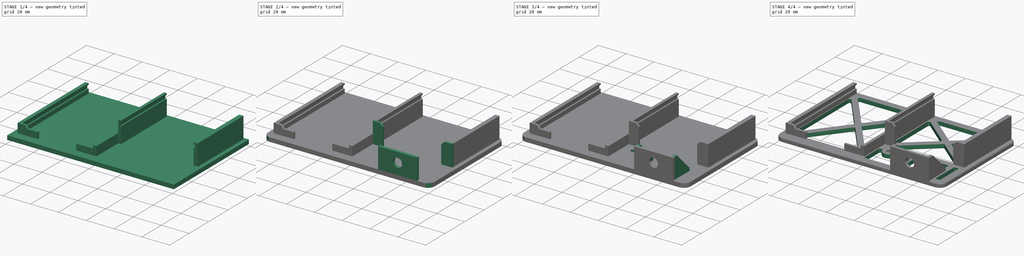
[diagram: build sequence overview — one tinted view per stage of 4, left to right]
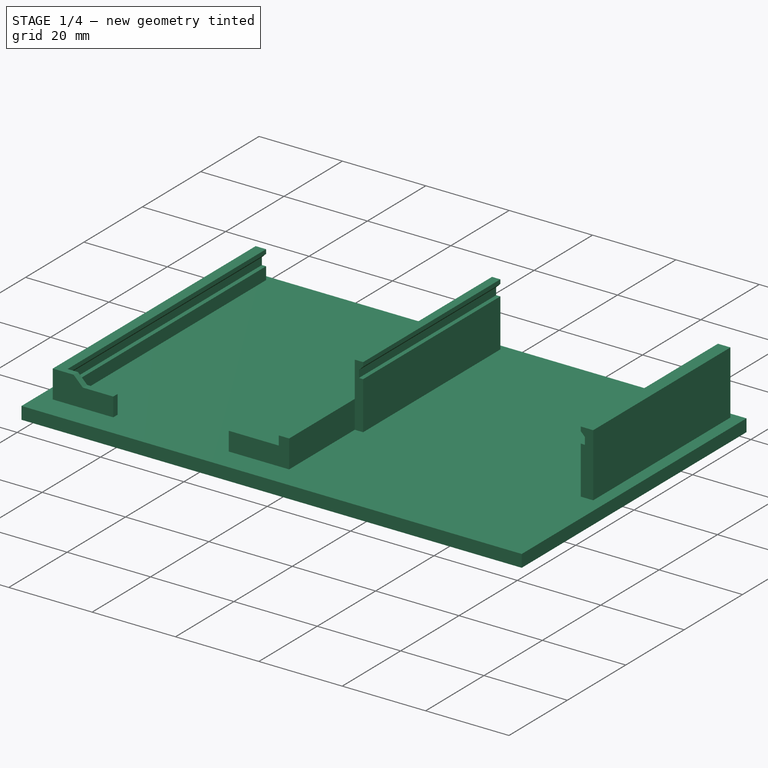
[diagram: stage 1 of 4 — iso view after this stage's code; geometry added in this stage tinted green]
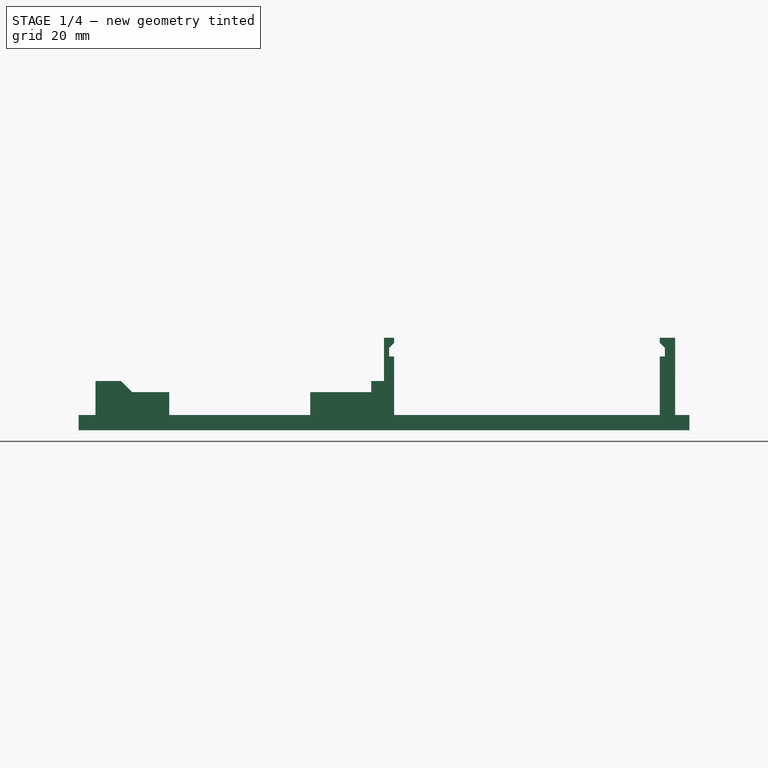
[diagram: stage 1 of 4 — front view after this stage's code; geometry added in this stage tinted green]
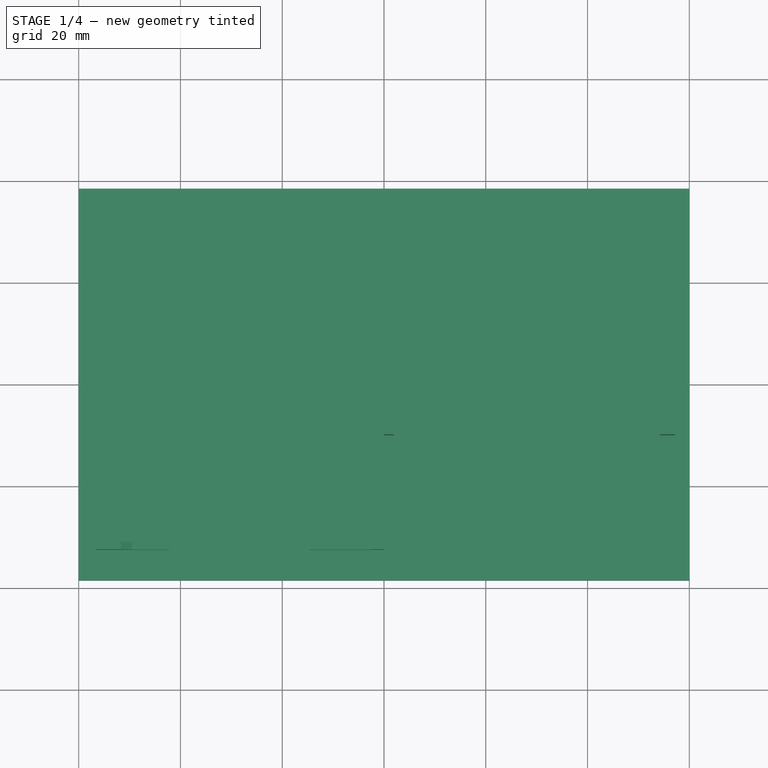
[diagram: stage 1 of 4 — top view after this stage's code; geometry added in this stage tinted green]
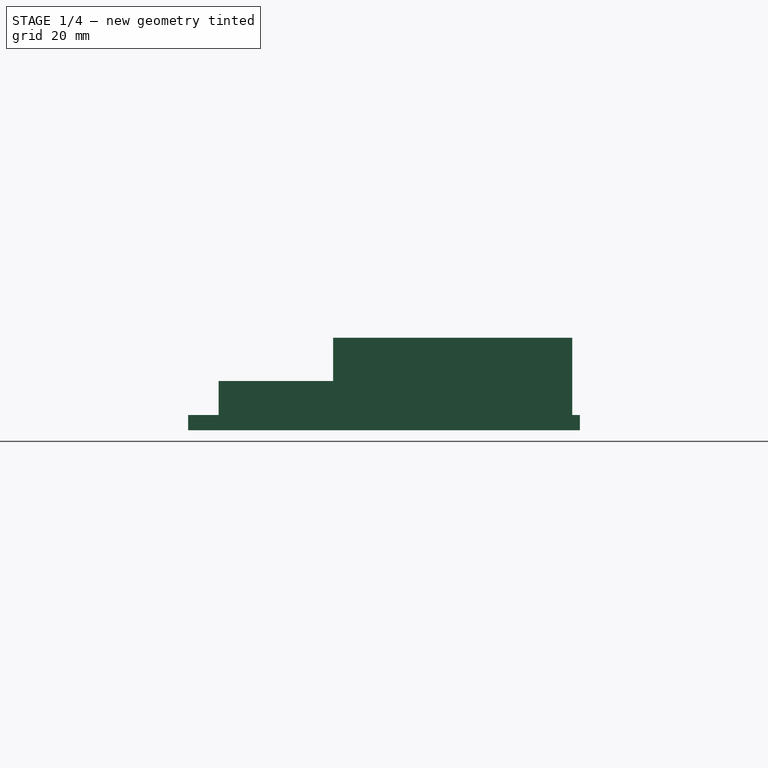
[diagram: stage 1 of 4 — right view after this stage's code; geometry added in this stage tinted green]
FCSTD DOCUMENT  (FreeCAD 0.18.4R)
Label: termostat_dev_frame
License: All rights reserved
LicenseURL: http://en.wikipedia.org/wiki/All_rights_reserved
objects: Sketcher::SketchObject×10, PartDesign::Pad×8, PartDesign::Fillet×4, PartDesign::Pocket×2, PartDesign::Body×1
note: 35 computed .brp shape members not serialized (recipe doc carries the construction recipe); baked Part::Feature solids carry a one-line shape summary decoded from their .brp

FEATURE [Sketcher::SketchObject] Sketch
  MapMode = 5
  Support = -> [XY_Plane]
  sketch-geometry (4):
    g0: LineSegment StartX=-60 StartY=38.5 StartZ=0 EndX=60 EndY=38.5 EndZ=0
    g1: LineSegment StartX=60 StartY=38.5 StartZ=0 EndX=60 EndY=-38.5 EndZ=0
    g2: LineSegment StartX=60 StartY=-38.5 StartZ=0 EndX=-60 EndY=-38.5 EndZ=0
    g3: LineSegment StartX=-60 StartY=-38.5 StartZ=0 EndX=-60 EndY=38.5 EndZ=0
  constraints (9):
    c: Coincident(g0,g1)
    c: Coincident(g1,g2)
    c: Coincident(g2,g3)
    c: Coincident(g3,g0)
    c: Symmetric(g0,g0,g-2)
    c: Symmetric(g0,g2,g-1)
    c: Symmetric(g2,g1,g-2)
    c: DistanceY(g1,g1) = 77
    c: DistanceX(g0,g0) = 120
FEATURE [PartDesign::Pad] Pad
  Length = 3
  Length2 = 100
  Profile = -> Sketch
  Type = 0
FEATURE [Sketcher::SketchObject] Sketch001
  ExternalGeometry = -> [Pad]
  MapMode = 5
  Placement = pos=(0,0,0) rot=(1,0,0;1.5708rad)
  Support = -> [XZ_Plane]
  sketch-geometry (17):
    g0: LineSegment StartX=-56.7 StartY=3 StartZ=0 EndX=-56.7 EndY=9.7 EndZ=0
    g1: LineSegment StartX=-56.7 StartY=9.7 StartZ=0 EndX=-54.2 EndY=9.7 EndZ=0
    g2: LineSegment StartX=-54.2 StartY=9.7 StartZ=0 EndX=-54.2 EndY=8.7 EndZ=0
    g3: LineSegment StartX=-54.2 StartY=8.7 StartZ=0 EndX=-55.2 EndY=7.7 EndZ=0
    g4: LineSegment StartX=-55.2 StartY=7.7 StartZ=0 EndX=-55.2 EndY=6 EndZ=0
    g5: LineSegment StartX=-55.2 StartY=6 StartZ=0 EndX=-54.2 EndY=6 EndZ=0
    g6: LineSegment StartX=-54.2 StartY=6 StartZ=0 EndX=-54.2 EndY=3 EndZ=0
    g7: LineSegment StartX=-54.2 StartY=3 StartZ=0 EndX=-56.7 EndY=3 EndZ=0
    g8: LineSegment StartX=-2 StartY=3 StartZ=0 EndX=-2 EndY=6 EndZ=0
    g9: LineSegment StartX=-2 StartY=6 StartZ=0 EndX=-1 EndY=6 EndZ=0
    g10: LineSegment StartX=-1 StartY=6 StartZ=0 EndX=-1 EndY=7.7 EndZ=0
    g11: LineSegment StartX=-1 StartY=7.7 StartZ=0 EndX=-2 EndY=8.7 EndZ=0
    g12: LineSegment StartX=-2 StartY=8.7 StartZ=0 EndX=-2 EndY=9.7 EndZ=0
    g13: LineSegment StartX=-2 StartY=9.7 StartZ=0 EndX=0 EndY=9.7 EndZ=0
    g14: LineSegment StartX=0 StartY=9.7 StartZ=0 EndX=0 EndY=3 EndZ=0
    g15: LineSegment StartX=0 StartY=3 StartZ=0 EndX=-2 EndY=3 EndZ=0
    g16: LineSegment [constr] StartX=-28.1 StartY=9.7 StartZ=0 EndX=-28.1 EndY=3 EndZ=0
  constraints (46):
    c: Coincident(g0,g1)
    c: Horizontal(g1)
    c: Coincident(g1,g2)
    c: Coincident(g2,g3)
    c: Coincident(g3,g4)
    c: Vertical(g4)
    c: Coincident(g4,g5)
    c: Coincident(g5,g6)
    c: Vertical(g6)
    c: Coincident(g6,g7)
    c: Coincident(g7,g0)
    c: Parallel(g7,g-3)
    c: Coincident(g8,g9)
    c: Coincident(g9,g10)
    c: Coincident(g10,g11)
    c: Coincident(g11,g12)
    c: Coincident(g12,g13)
    c: Coincident(g13,g14)
    c: Coincident(g14,g15)
    c: Coincident(g15,g8)
    c: PointOnObject(g16,g-3)
    c: Vertical(g16)
    c: PointOnObject(g16,g1)
    c: Symmetric(g12,g1,g16)
    c: Symmetric(g11,g2,g16)
    c: Vertical(g2)
    c: Symmetric(g3,g10,g16)
    c: Symmetric(g4,g9,g16)
    c: Symmetric(g5,g8,g16)
    c: Symmetric(g6,g8,g16)
    c: DistanceY(g6,g6) = 3
    c: Horizontal(g5)
    c: DistanceX(g5,g5) = 1
    c: DistanceY(g4,g4) = 1.7
    c: Angle(g4,g3) = 2.35619
    c: PointOnObject(g5,g2)
    c: DistanceY(g2,g2) = 1
    c: DistanceX(g4,g9) = 54.2
    c: DistanceX(g13,g13) = 2
    c: Vertical(g14)
    c: Horizontal(g15)
    c: DistanceX(g1,g1) = 2.5
    c: Perpendicular(g7,g0)
    c: PointOnObject(g0,g-3)
    c: PointOnObject(g14,g-2)
    c: Perpendicular(g14,g13)
FEATURE [PartDesign::Pad] Pad001
  BaseFeature = -> Pad
  Length = 31
  Length2 = 37
  Profile = -> Sketch001
  Type = 4
FEATURE [Sketcher::SketchObject] Sketch002
  ExternalGeometry = -> [Pad001]
  MapMode = 5
  Placement = pos=(0,-31,-6.8e-15) rot=(1,0,0;1.5708rad)
  Support = -> [Pad001]
  sketch-geometry (12):
    g0: LineSegment StartX=-56.7 StartY=3 StartZ=0 EndX=-56.7 EndY=9.7 EndZ=0
    g1: LineSegment StartX=-56.7 StartY=9.7 StartZ=0 EndX=-51.7 EndY=9.7 EndZ=0
    g2: LineSegment StartX=-51.7 StartY=9.7 StartZ=0 EndX=-49.5 EndY=7.5 EndZ=0
    g3: LineSegment StartX=-49.5 StartY=7.5 StartZ=0 EndX=-42.2 EndY=7.5 EndZ=0
    g4: LineSegment StartX=-42.2 StartY=7.5 StartZ=0 EndX=-42.2 EndY=3 EndZ=0
    g5: LineSegment StartX=-42.2 StartY=3 StartZ=0 EndX=-56.7 EndY=3 EndZ=0
    g6: LineSegment StartX=-2.84e-14 StartY=3 StartZ=0 EndX=-2.84e-14 EndY=9.7 EndZ=0
    g7: LineSegment StartX=-2.84e-14 StartY=9.7 StartZ=0 EndX=-2.5 EndY=9.7 EndZ=0
    g8: LineSegment StartX=-2.5 StartY=9.7 StartZ=0 EndX=-2.5 EndY=7.5 EndZ=0
    g9: LineSegment StartX=-2.5 StartY=7.5 StartZ=0 EndX=-14.5 EndY=7.5 EndZ=0
    g10: LineSegment StartX=-14.5 StartY=7.5 StartZ=0 EndX=-14.5 EndY=3 EndZ=0
    g11: LineSegment StartX=-14.5 StartY=3 StartZ=0 EndX=-2.84e-14 EndY=3 EndZ=0
  constraints (36):
    c: Vertical(g0)
    c: Coincident(g0,g1)
    c: Horizontal(g1)
    c: Coincident(g1,g2)
    c: Coincident(g2,g3)
    c: Horizontal(g3)
    c: Coincident(g3,g4)
    c: Vertical(g4)
    c: Coincident(g4,g5)
    c: Coincident(g5,g0)
    c: Horizontal(g5)
    c: Vertical(g6)
    c: Coincident(g6,g7)
    c: Horizontal(g7)
    c: Coincident(g7,g8)
    c: Coincident(g8,g9)
    c: Coincident(g9,g10)
    c: Coincident(g10,g11)
    c: Coincident(g11,g6)
    c: Horizontal(g11)
    c: DistanceY(g0,g0) = 6.7
    c: Angle(g1,g2) = 2.35619
    c: Perpendicular(g7,g8)
    c: Horizontal(g9)
    c: Perpendicular(g9,g10)
    c: PointOnObject(g-3,g5)
    c: DistanceX(g0,g-3) = 2.5
    c: DistanceX(g5,g5) = 14.5
    c: DistanceX(g1,g1) = 5
    c: DistanceY(g-3,g3) = 1.5
    c: PointOnObject(g4,g11)
    c: PointOnObject(g3,g9)
    c: DistanceX(g-4,g6) = 2
    c: PointOnObject(g1,g7)
    c: DistanceX(g7,g7) = 2.5
    c: DistanceX(g11,g11) = 14.5
FEATURE [PartDesign::Pad] Pad002
  BaseFeature = -> Pad001
  Length = 1.5
  Length2 = 100
  Profile = -> Sketch002
  Type = 0
FEATURE [Sketcher::SketchObject] Sketch003
  ExternalGeometry = -> [Pad002]
  MapMode = 5
  Placement = pos=(0,0,0) rot=(1,0,0;1.5708rad)
  Support = -> [XZ_Plane]
  sketch-geometry (17):
    g0: LineSegment [constr] StartX=28.1 StartY=18.2 StartZ=0 EndX=28.1 EndY=3 EndZ=0
    g1: LineSegment StartX=0 StartY=3 StartZ=0 EndX=0 EndY=18.2 EndZ=0
    g2: LineSegment StartX=0 StartY=18.2 StartZ=0 EndX=2 EndY=18.2 EndZ=0
    g3: LineSegment StartX=2 StartY=18.2 StartZ=0 EndX=2 EndY=17.2 EndZ=0
    g4: LineSegment StartX=2 StartY=17.2 StartZ=0 EndX=1 EndY=16.2 EndZ=0
    g5: LineSegment StartX=1 StartY=16.2 StartZ=0 EndX=1 EndY=14.5 EndZ=0
    g6: LineSegment StartX=1 StartY=14.5 StartZ=0 EndX=2 EndY=14.5 EndZ=0
    g7: LineSegment StartX=2 StartY=14.5 StartZ=0 EndX=2 EndY=3 EndZ=0
    g8: LineSegment StartX=2 StartY=3 StartZ=0 EndX=0 EndY=3 EndZ=0
    g9: LineSegment StartX=54.2 StartY=18.2 StartZ=0 EndX=57.2 EndY=18.2 EndZ=0
    g10: LineSegment StartX=57.2 StartY=18.2 StartZ=0 EndX=57.2 EndY=3 EndZ=0
    g11: LineSegment StartX=57.2 StartY=3 StartZ=0 EndX=54.2 EndY=3 EndZ=0
    g12: LineSegment StartX=54.2 StartY=3 StartZ=0 EndX=54.2 EndY=14.5 EndZ=0
    g13: LineSegment StartX=54.2 StartY=14.5 StartZ=0 EndX=55.2 EndY=14.5 EndZ=0
    g14: LineSegment StartX=55.2 StartY=14.5 StartZ=0 EndX=55.2 EndY=16.2 EndZ=0
    g15: LineSegment StartX=55.2 StartY=16.2 StartZ=0 EndX=54.2 EndY=17.2 EndZ=0
    g16: LineSegment StartX=54.2 StartY=17.2 StartZ=0 EndX=54.2 EndY=18.2 EndZ=0
  constraints (46):
    c: Vertical(g0)
    c: PointOnObject(g0,g-3)
    c: Vertical(g1)
    c: Coincident(g1,g2)
    c: Horizontal(g2)
    c: Coincident(g2,g3)
    c: Vertical(g3)
    c: Coincident(g3,g4)
    c: Coincident(g4,g5)
    c: Coincident(g5,g6)
    c: Coincident(g6,g7)
    c: Coincident(g7,g8)
    c: Coincident(g8,g1)
    c: Horizontal(g8)
    c: Coincident(g9,g10)
    c: Vertical(g10)
    c: Coincident(g10,g11)
    c: Horizontal(g11)
    c: Coincident(g11,g12)
    c: Coincident(g12,g13)
    c: Coincident(g13,g14)
    c: Coincident(g14,g15)
    c: Coincident(g15,g16)
    c: Coincident(g16,g9)
    c: Vertical(g7)
    c: Horizontal(g6)
    c: Vertical(g5)
    c: Angle(g3,g4) = 2.35619
    c: Symmetric(g5,g13,g0)
    c: Symmetric(g12,g6,g0)
    c: DistanceX(g5,g13) = 54.2
    c: DistanceX(g6,g6) = 1
    c: PointOnObject(g1,g-3)
    c: PointOnObject(g1,g-2)
    c: PointOnObject(g7,g3)
    c: DistanceX(g2,g2) = 2
    c: DistanceY(g3,g3) = 1
    c: DistanceY(g5,g5) = 1.7
    c: DistanceY(g7,g7) = 11.5
    c: PointOnObject(g0,g2)
    c: Symmetric(g14,g4,g0)
    c: Symmetric(g3,g15,g0)
    c: Symmetric(g9,g2,g0)
    c: Symmetric(g11,g7,g0)
    c: Perpendicular(g10,g9)
    c: DistanceX(g9,g9) = 3
FEATURE [PartDesign::Pad] Pad003
  BaseFeature = -> Pad002
  Length = 10
  Length2 = 37
  Profile = -> Sketch003
  Type = 4
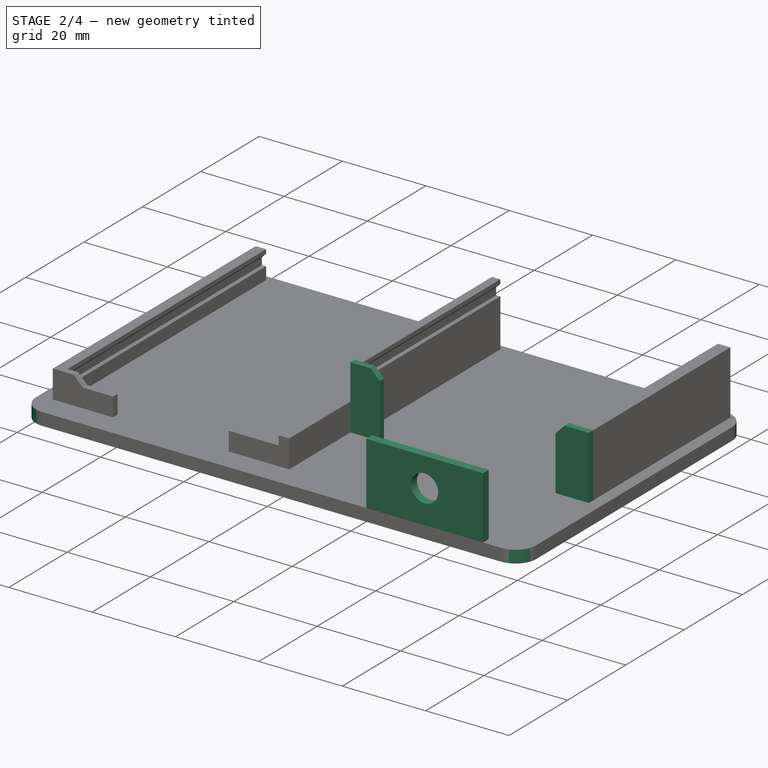
[diagram: stage 2 of 4 — iso view after this stage's code; geometry added in this stage tinted green]
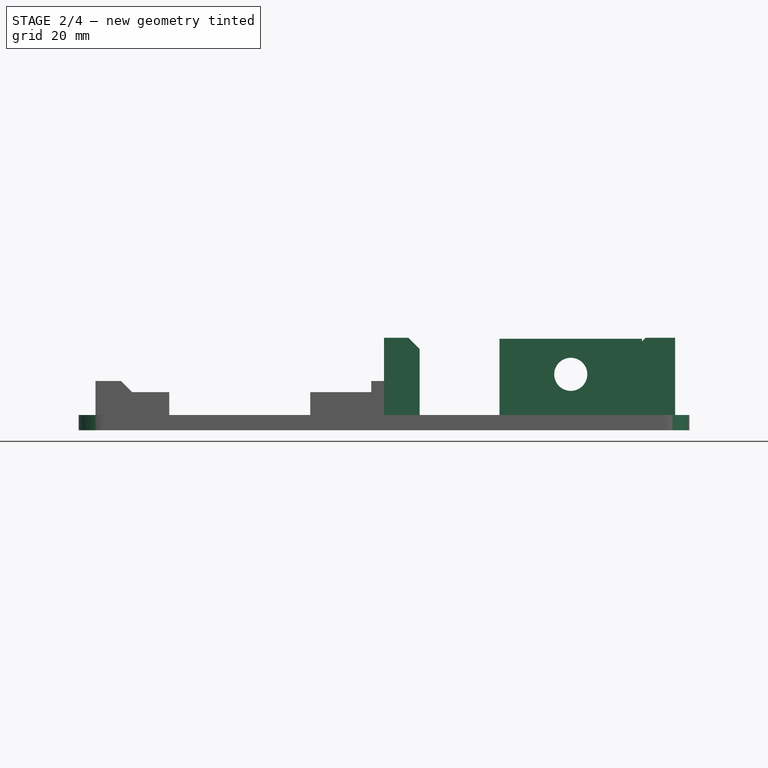
[diagram: stage 2 of 4 — front view after this stage's code; geometry added in this stage tinted green]
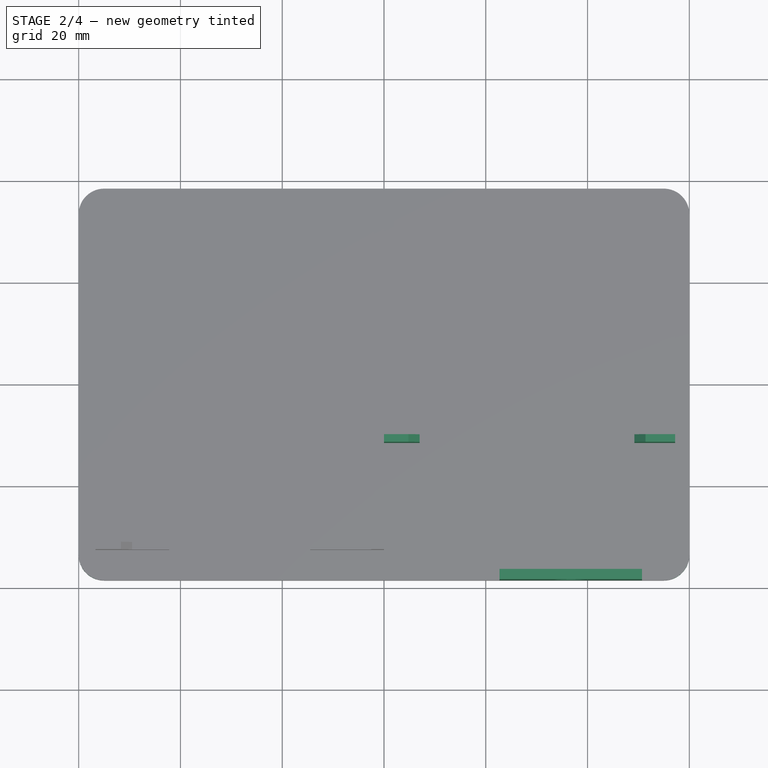
[diagram: stage 2 of 4 — top view after this stage's code; geometry added in this stage tinted green]
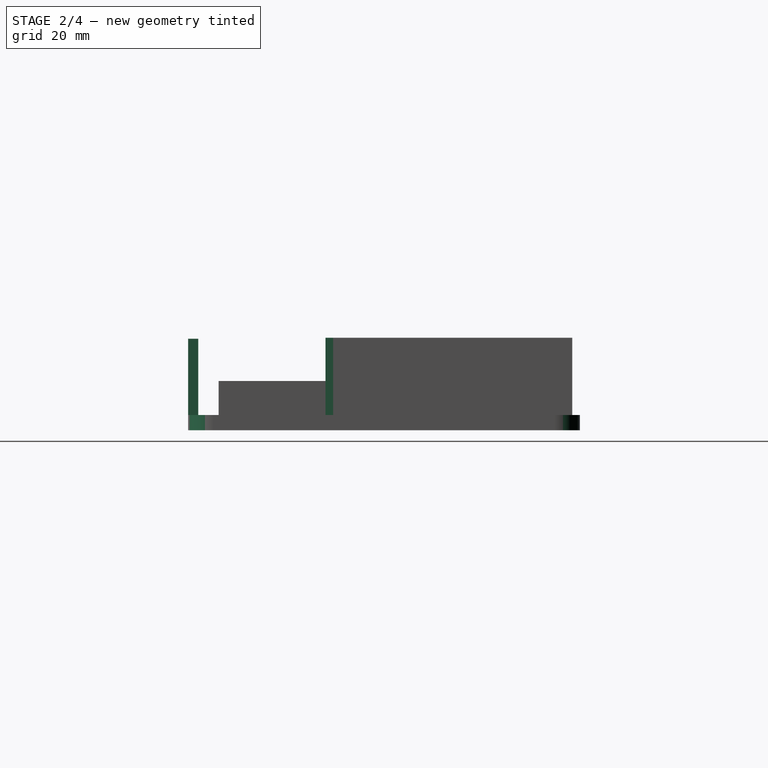
[diagram: stage 2 of 4 — right view after this stage's code; geometry added in this stage tinted green]
FEATURE [Sketcher::SketchObject] Sketch004
  ExternalGeometry = -> [Pad003]
  MapMode = 5
  Placement = pos=(0,-10,-2.2e-15) rot=(1,0,0;1.5708rad)
  Support = -> [Pad003]
  sketch-geometry (11):
    g0: LineSegment StartX=-6e-16 StartY=3 StartZ=0 EndX=-6e-16 EndY=18.2 EndZ=0
    g1: LineSegment StartX=-6e-16 StartY=18.2 StartZ=0 EndX=4.8 EndY=18.2 EndZ=0
    g2: LineSegment StartX=4.8 StartY=18.2 StartZ=0 EndX=7 EndY=16 EndZ=0
    g3: LineSegment StartX=7 StartY=16 StartZ=0 EndX=7 EndY=3 EndZ=0
    g4: LineSegment StartX=-6e-16 StartY=3 StartZ=0 EndX=7 EndY=3 EndZ=0
    g5: LineSegment StartX=51.4 StartY=18.2 StartZ=0 EndX=57.2 EndY=18.2 EndZ=0
    g6: LineSegment StartX=57.2 StartY=18.2 StartZ=0 EndX=57.2 EndY=3 EndZ=0
    g7: LineSegment StartX=57.2 StartY=3 StartZ=0 EndX=49.2 EndY=3 EndZ=0
    g8: LineSegment StartX=49.2 StartY=3 StartZ=0 EndX=49.2 EndY=16 EndZ=0
    g9: LineSegment StartX=49.2 StartY=16 StartZ=0 EndX=51.4 EndY=18.2 EndZ=0
    g10: LineSegment [constr] StartX=28.1 StartY=18.2 StartZ=0 EndX=28.1 EndY=3 EndZ=0
  constraints (30):
    c: Vertical(g0)
    c: Coincident(g0,g1)
    c: Horizontal(g1)
    c: Coincident(g1,g2)
    c: Coincident(g2,g3)
    c: Vertical(g3)
    c: Angle(g1,g2) = 2.35619
    c: DistanceX(g0,g-3) = 2
    c: Coincident(g4,g0)
    c: Coincident(g4,g3)
    c: Perpendicular(g3,g4)
    c: PointOnObject(g-3,g4)
    c: DistanceY(g0,g0) = 15.2
    c: DistanceX(g4,g4) = 7
    c: DistanceY(g-3,g2) = 1.5
    c: Coincident(g5,g6)
    c: Coincident(g6,g7)
    c: Coincident(g7,g8)
    c: Coincident(g8,g9)
    c: Coincident(g9,g5)
    c: Symmetric(g-4,g-3,g10)
    c: PointOnObject(g10,g4)
    c: PointOnObject(g10,g1)
    c: Symmetric(g3,g7,g10)
    c: Symmetric(g8,g2,g10)
    c: Symmetric(g5,g1,g10)
    c: Perpendicular(g8,g7)
    c: Perpendicular(g7,g6)
    c: Perpendicular(g6,g5)
    c: DistanceX(g-4,g5) = 3
FEATURE [PartDesign::Pad] Pad004
  BaseFeature = -> Pad003
  Length = 1.5
  Length2 = 100
  Profile = -> Sketch004
  Type = 0
FEATURE [Sketcher::SketchObject] Sketch005
  ExternalGeometry = -> [Pad004]
  MapMode = 5
  Placement = pos=(0,-38.5,0) rot=(1,0,0;1.5708rad)
  Support = -> [Pad004]
  sketch-geometry (6):
    g0: LineSegment StartX=22.7 StartY=18 StartZ=0 EndX=50.7 EndY=18 EndZ=0
    g1: LineSegment StartX=50.7 StartY=18 StartZ=0 EndX=50.7 EndY=3 EndZ=0
    g2: LineSegment StartX=50.7 StartY=3 StartZ=0 EndX=22.7 EndY=3 EndZ=0
    g3: LineSegment StartX=22.7 StartY=3 StartZ=0 EndX=22.7 EndY=18 EndZ=0
    g4: Circle CenterX=36.7 CenterY=11 CenterZ=0 NormalX=0 NormalY=0 NormalZ=1 AngleXU=0 Radius=3.25
    g5: LineSegment [constr] StartX=36.7 StartY=11 StartZ=0 EndX=36.7 EndY=18 EndZ=0
  constraints (17):
    c: Coincident(g0,g1)
    c: Coincident(g1,g2)
    c: Coincident(g2,g3)
    c: Coincident(g3,g0)
    c: Horizontal(g0)
    c: Horizontal(g2)
    c: Vertical(g1)
    c: Vertical(g3)
    c: Coincident(g5,g4)
    c: PointOnObject(g5,g0)
    c: Symmetric(g0,g0,g5)
    c: DistanceX(g0,g0) = 28
    c: DistanceY(g1,g4) = 8
    c: DistanceY(g5,g5) = 7
    c: Diameter(g4) = 6.5
    c: PointOnObject(g-3,g2)
    c: DistanceX(g-3,g0) = 1.5
FEATURE [PartDesign::Pad] Pad005
  BaseFeature = -> Pad004
  Length = 2
  Length2 = 100
  Profile = -> Sketch005
  Reversed = true
  Type = 0
FEATURE [PartDesign::Fillet] Fillet
  Base = -> Pad005 [Edge5,Edge8,Edge2,Edge1]
  BaseFeature = -> Pad005
  Radius = 5
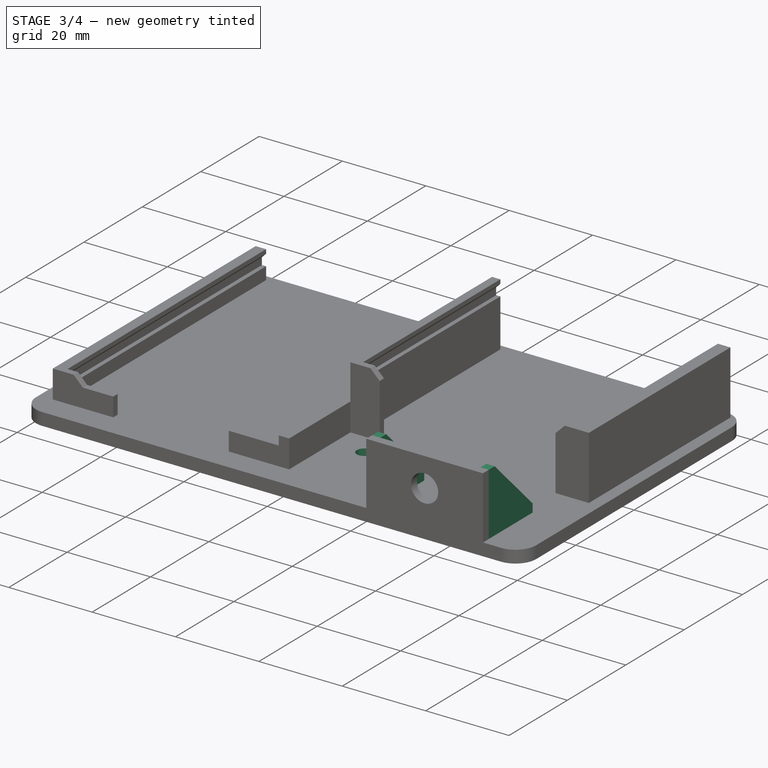
[diagram: stage 3 of 4 — iso view after this stage's code; geometry added in this stage tinted green]
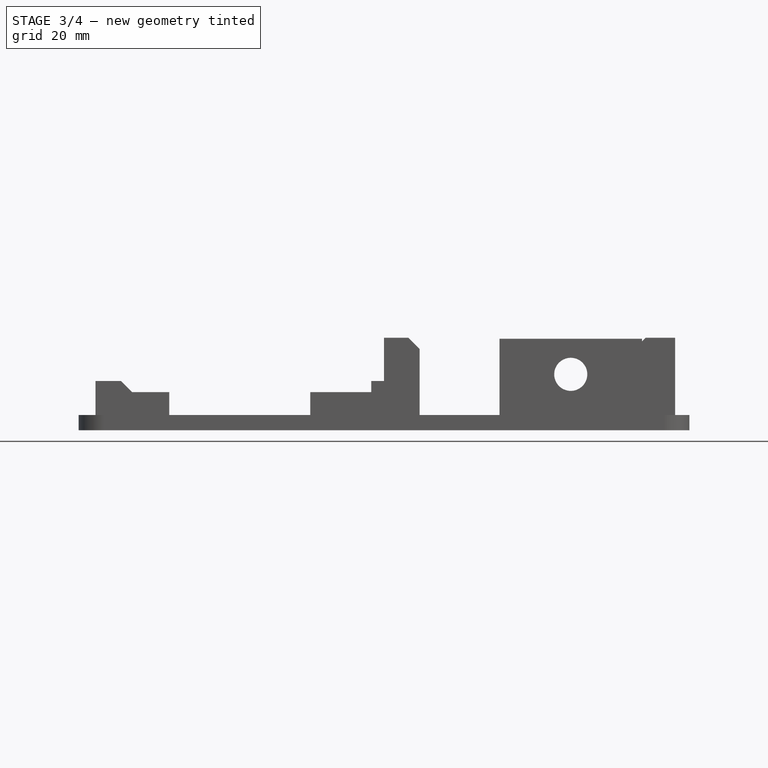
[diagram: stage 3 of 4 — front view after this stage's code; geometry added in this stage tinted green]
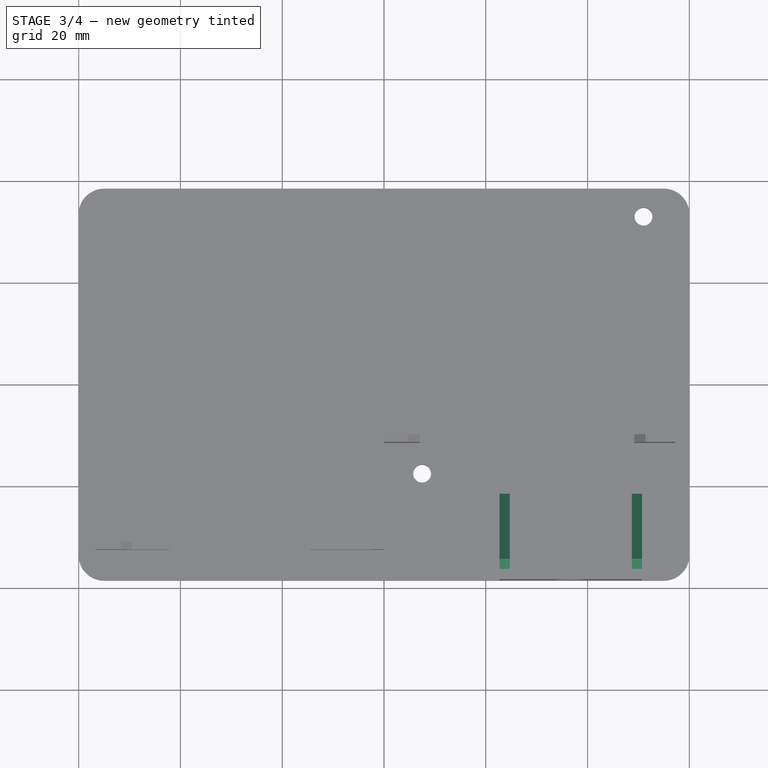
[diagram: stage 3 of 4 — top view after this stage's code; geometry added in this stage tinted green]
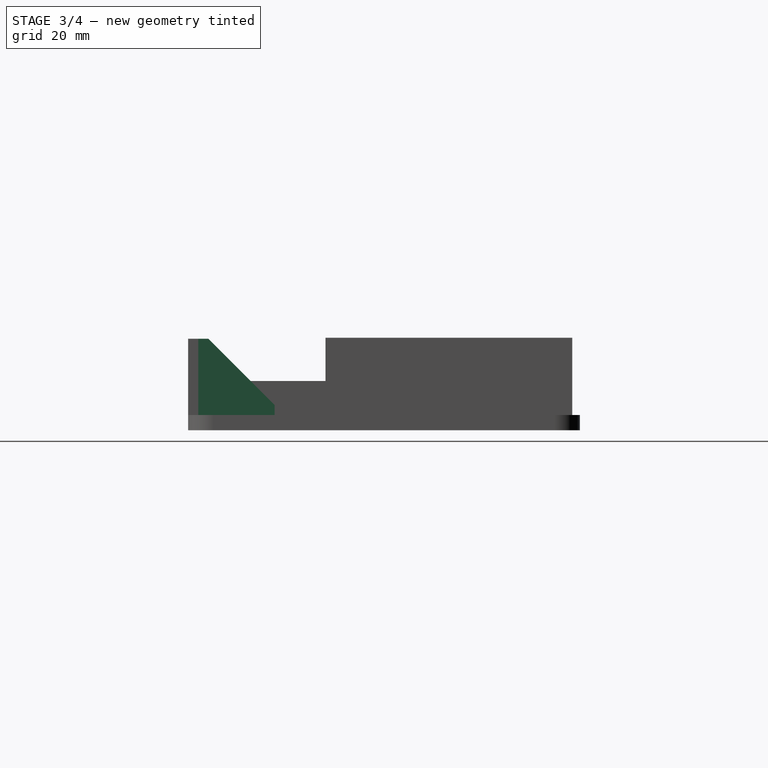
[diagram: stage 3 of 4 — right view after this stage's code; geometry added in this stage tinted green]
FEATURE [Sketcher::SketchObject] Sketch006
  sketch-geometry (2):
    g0: Circle CenterX=51 CenterY=33 CenterZ=0 NormalX=0 NormalY=0 NormalZ=1 AngleXU=0 Radius=1.75
    g1: Circle CenterX=7.5 CenterY=-17.5 CenterZ=0 NormalX=0 NormalY=0 NormalZ=1 AngleXU=0 Radius=1.75
  constraints (6):
    c: Equal(g0,g1)
    c: Diameter(g0) = 3.5
    c: DistanceX(g1,g0) = 43.5
    c: DistanceY(g1,g0) = 50.5
    c: DistanceY(g-1,g0) = 33
    c: DistanceX(g-1,g0) = 51
FEATURE [PartDesign::Pocket] Pocket
  BaseFeature = -> Fillet
  Length = 5
  Length2 = 100
  Profile = -> Sketch006
  Reversed = true
  Type = 1
FEATURE [Sketcher::SketchObject] Sketch007
  ExternalGeometry = -> [Pocket]
  MapMode = 5
  Placement = pos=(22.7,0,0) rot=(0.57735,-0.57735,-0.57735;2.0944rad)
  Support = -> [Pocket]
  sketch-geometry (5):
    g0: LineSegment StartX=36.5 StartY=18 StartZ=0 EndX=34.5 EndY=18 EndZ=0
    g1: LineSegment StartX=34.5 StartY=18 StartZ=0 EndX=21.5 EndY=5 EndZ=0
    g2: LineSegment StartX=21.5 StartY=5 StartZ=0 EndX=21.5 EndY=3 EndZ=0
    g3: LineSegment StartX=21.5 StartY=3 StartZ=0 EndX=36.5 EndY=3 EndZ=0
    g4: LineSegment StartX=36.5 StartY=3 StartZ=0 EndX=36.5 EndY=18 EndZ=0
  constraints (13):
    c: Coincident(g-3,g0)
    c: Horizontal(g0)
    c: Coincident(g0,g1)
    c: Coincident(g1,g2)
    c: Vertical(g2)
    c: Coincident(g2,g3)
    c: Coincident(g3,g-3)
    c: Coincident(g3,g4)
    c: Coincident(g4,g0)
    c: Perpendicular(g4,g3)
    c: Equal(g0,g2)
    c: Angle(g1,g0) = 2.35619
    c: DistanceX(g0,g0) = 2
FEATURE [PartDesign::Pad] Pad006
  BaseFeature = -> Pocket
  Length = 2
  Length2 = 100
  Profile = -> Sketch007
  Reversed = true
  Type = 0
FEATURE [Sketcher::SketchObject] Sketch008
  ExternalGeometry = -> [Pocket]
  MapMode = 5
  Placement = pos=(50.7,0,0) rot=(0.57735,0.57735,0.57735;2.0944rad)
  Support = -> [Pad006]
  sketch-geometry (5):
    g0: LineSegment StartX=-36.5 StartY=18 StartZ=0 EndX=-34.5 EndY=18 EndZ=0
    g1: LineSegment StartX=-34.5 StartY=18 StartZ=0 EndX=-21.5 EndY=5 EndZ=0
    g2: LineSegment StartX=-21.5 StartY=5 StartZ=0 EndX=-21.5 EndY=3 EndZ=0
    g3: LineSegment StartX=-21.5 StartY=3 StartZ=0 EndX=-36.5 EndY=3 EndZ=0
    g4: LineSegment StartX=-36.5 StartY=3 StartZ=0 EndX=-36.5 EndY=18 EndZ=0
  constraints (13):
    c: Coincident(g-3,g0)
    c: Horizontal(g0)
    c: Coincident(g0,g1)
    c: Coincident(g1,g2)
    c: Vertical(g2)
    c: Coincident(g2,g3)
    c: Coincident(g3,g-3)
    c: Coincident(g3,g4)
    c: Coincident(g4,g0)
    c: Perpendicular(g4,g3)
    c: Equal(g0,g2)
    c: DistanceX(g0,g0) = 2
    c: Angle(g0,g1) = 2.35619
FEATURE [PartDesign::Pad] Pad007
  BaseFeature = -> Pad006
  Length = 2
  Length2 = 100
  Profile = -> Sketch008
  Reversed = true
  Type = 0
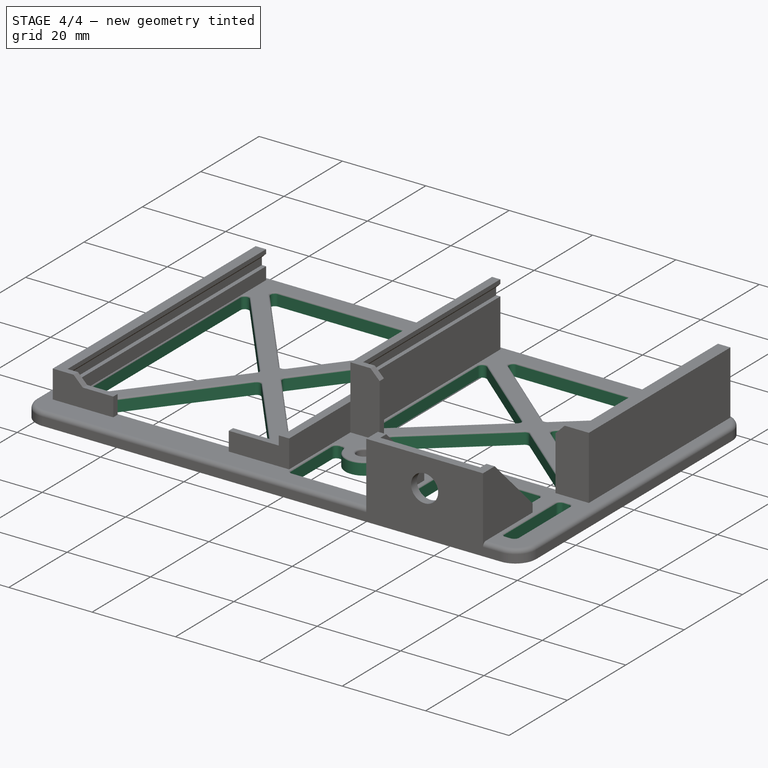
[diagram: stage 4 of 4 — iso view after this stage's code; geometry added in this stage tinted green]
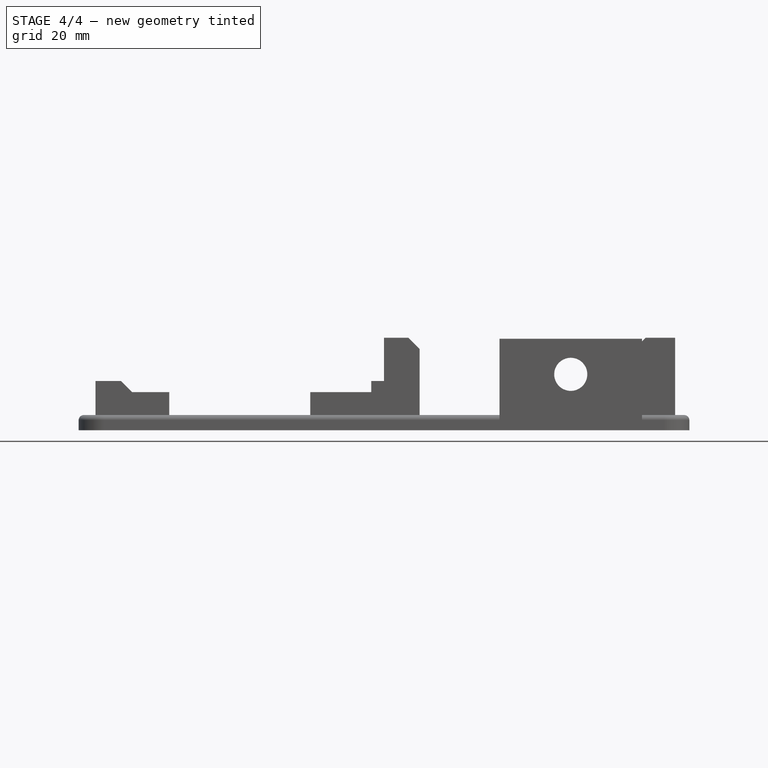
[diagram: stage 4 of 4 — front view after this stage's code; geometry added in this stage tinted green]
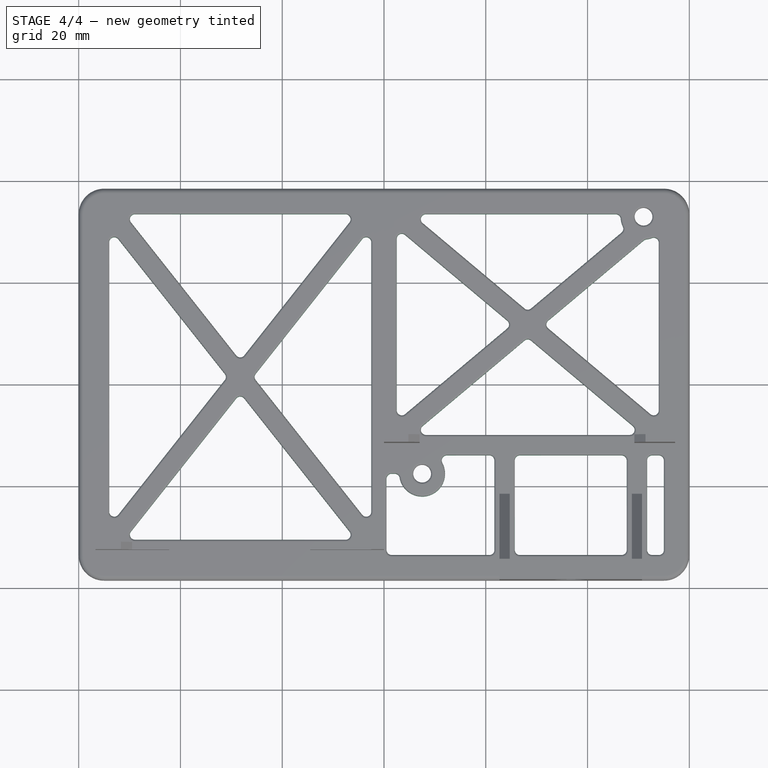
[diagram: stage 4 of 4 — top view after this stage's code; geometry added in this stage tinted green]
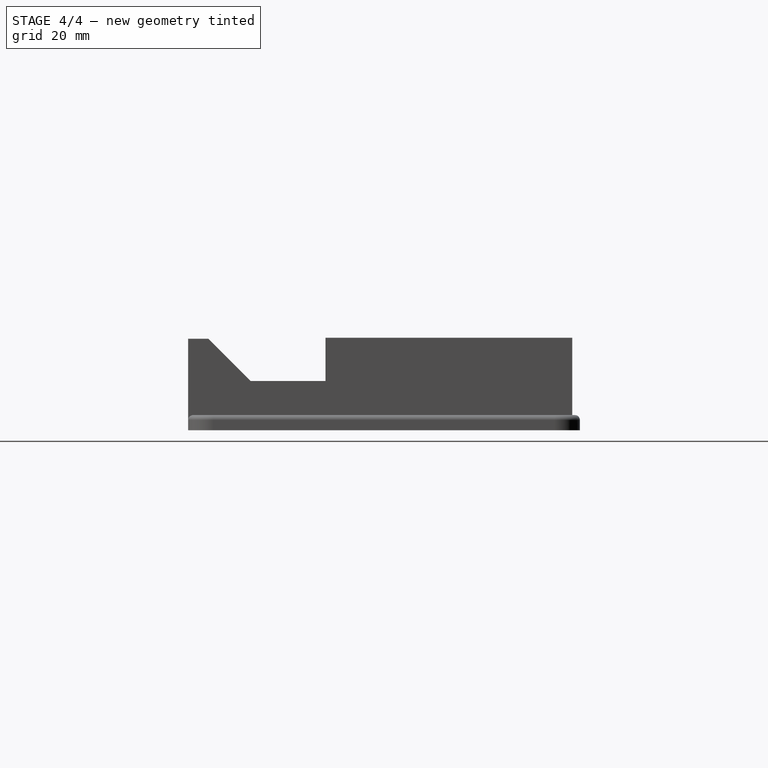
[diagram: stage 4 of 4 — right view after this stage's code; geometry added in this stage tinted green]
FEATURE [Sketcher::SketchObject] Sketch009
  ExternalGeometry = -> [Pad007]
  MapMode = 5
  Placement = pos=(0,0,3) rot=(0,0,1;0rad)
  Support = -> [Pad007]
  sketch-geometry (40):
    g0: LineSegment StartX=-54 StartY=30.8449 StartZ=0 EndX=-30.7996 EndY=1.5 EndZ=0
    g1: LineSegment StartX=-30.7996 StartY=1.5 StartZ=0 EndX=-54 EndY=-27.8449 EndZ=0
    g2: LineSegment StartX=-54 StartY=-27.8449 StartZ=0 EndX=-54 EndY=30.8449 EndZ=0
    g3: LineSegment StartX=-51 StartY=33.5 StartZ=0 EndX=-28.25 EndY=4.7248 EndZ=0
    g4: LineSegment StartX=-28.25 StartY=4.7248 StartZ=0 EndX=-5.5 EndY=33.5 EndZ=0
    g5: LineSegment StartX=-5.5 StartY=33.5 StartZ=0 EndX=-51 EndY=33.5 EndZ=0
    g6: LineSegment StartX=-2.5 StartY=30.8449 StartZ=0 EndX=-25.7004 EndY=1.5 EndZ=0
    g7: LineSegment StartX=-25.7004 StartY=1.5 StartZ=0 EndX=-2.5 EndY=-27.8449 EndZ=0
    g8: LineSegment StartX=-2.5 StartY=-27.8449 StartZ=0 EndX=-2.5 EndY=30.8449 EndZ=0
    g9: LineSegment StartX=-28.25 StartY=-1.7248 StartZ=0 EndX=-51 EndY=-30.5 EndZ=0
    g10: LineSegment StartX=-51 StartY=-30.5 StartZ=0 EndX=-5.5 EndY=-30.5 EndZ=0
    g11: LineSegment StartX=-5.5 StartY=-30.5 StartZ=0 EndX=-28.25 EndY=-1.7248 EndZ=0
    g12: LineSegment StartX=2.5 StartY=30.7957 StartZ=0 EndX=2.5 EndY=-7.19566 EndZ=0
    g13: LineSegment StartX=2.5 StartY=-7.19566 StartZ=0 EndX=25.1385 EndY=11.8 EndZ=0
    g14: LineSegment StartX=25.1385 StartY=11.8 StartZ=0 EndX=2.5 EndY=30.7957 EndZ=0
    g15: LineSegment StartX=5.5 StartY=-9.9 StartZ=0 EndX=51 EndY=-9.9 EndZ=0
    g16: LineSegment StartX=51 StartY=-9.9 StartZ=0 EndX=28.25 EndY=9.1892 EndZ=0
    g17: LineSegment StartX=28.25 StartY=9.1892 StartZ=0 EndX=5.5 EndY=-9.9 EndZ=0
    g18: LineSegment StartX=5.5 StartY=33.5 StartZ=0 EndX=28.25 EndY=14.4108 EndZ=0
    g19: LineSegment StartX=28.25 StartY=14.4108 StartZ=0 EndX=47.3191 EndY=30.4114 EndZ=0
    g20: LineSegment StartX=5.5 StartY=33.5 StartZ=0 EndX=46.5279 EndY=33.5 EndZ=0
    g21: ArcOfCircle CenterX=51 CenterY=33 CenterZ=0 NormalX=0 NormalY=0 NormalZ=1 AngleXU=0 Radius=4.5 StartAngle=3.03025 EndAngle=3.7545
    g22: ArcOfCircle CenterX=51 CenterY=33 CenterZ=0 NormalX=0 NormalY=0 NormalZ=1 AngleXU=0 Radius=4.5 StartAngle=4.77333 EndAngle=5.44212
    g23: LineSegment StartX=54 StartY=29.6459 StartZ=0 EndX=54 EndY=-7.19566 EndZ=0
    g24: LineSegment StartX=54 StartY=-7.19566 StartZ=0 EndX=31.3615 EndY=11.8 EndZ=0
    g25: LineSegment StartX=31.3615 StartY=11.8 StartZ=0 EndX=51.274 EndY=28.5084 EndZ=0
    g26: LineSegment StartX=10.2 StartY=-13.9 StartZ=0 EndX=21.7 EndY=-13.9 EndZ=0
    g27: LineSegment StartX=21.7 StartY=-13.9 StartZ=0 EndX=21.7 EndY=-33.5 EndZ=0
    g28: LineSegment StartX=21.7 StartY=-33.5 StartZ=0 EndX=0.5 EndY=-33.5 EndZ=0
    g29: ArcOfCircle CenterX=7.5 CenterY=-17.5 CenterZ=0 NormalX=0 NormalY=0 NormalZ=1 AngleXU=0 Radius=4.5 StartAngle=3.14159 EndAngle=7.21048
    g30: LineSegment StartX=25.7 StartY=-13.9 StartZ=0 EndX=47.7 EndY=-13.9 EndZ=0
    g31: LineSegment StartX=47.7 StartY=-13.9 StartZ=0 EndX=47.7 EndY=-33.5 EndZ=0
    g32: LineSegment StartX=47.7 StartY=-33.5 StartZ=0 EndX=25.7 EndY=-33.5 EndZ=0
    g33: LineSegment StartX=25.7 StartY=-33.5 StartZ=0 EndX=25.7 EndY=-13.9 EndZ=0
    g34: LineSegment StartX=51.7 StartY=-13.9 StartZ=0 EndX=55 EndY=-13.9 EndZ=0
    g35: LineSegment StartX=55 StartY=-13.9 StartZ=0 EndX=55 EndY=-33.5 EndZ=0
    g36: LineSegment StartX=55 StartY=-33.5 StartZ=0 EndX=51.7 EndY=-33.5 EndZ=0
    g37: LineSegment StartX=51.7 StartY=-33.5 StartZ=0 EndX=51.7 EndY=-13.9 EndZ=0
    g38: LineSegment StartX=3 StartY=-17.5 StartZ=0 EndX=0.5 EndY=-17.5 EndZ=0
    g39: LineSegment StartX=0.5 StartY=-17.5 StartZ=0 EndX=0.5 EndY=-33.5 EndZ=0
  constraints (120):
    c: Coincident(g0,g1)
    c: Coincident(g1,g2)
    c: Coincident(g2,g0)
    c: Vertical(g2)
    c: Coincident(g3,g4)
    c: Coincident(g4,g5)
    c: Coincident(g5,g3)
    c: Horizontal(g5)
    c: Coincident(g6,g7)
    c: Coincident(g7,g8)
    c: Coincident(g8,g6)
    c: Coincident(g9,g10)
    c: Coincident(g10,g11)
    c: Coincident(g11,g9)
    c: Vertical(g12)
    c: Coincident(g12,g13)
    c: Coincident(g13,g14)
    c: Coincident(g14,g12)
    c: Horizontal(g15)
    c: Coincident(g15,g16)
    c: Coincident(g16,g17)
    c: Coincident(g17,g15)
    c: Coincident(g18,g19)
    c: Coincident(g20,g18)
    c: Horizontal(g20)
    c: Coincident(g19,g21)
    c: Coincident(g20,g21)
    c: Coincident(g22,g21)
    c: Coincident(g22,g23)
    c: Coincident(g23,g24)
    c: Coincident(g24,g25)
    c: Coincident(g25,g22)
    c: Horizontal(g26)
    c: Coincident(g26,g27)
    c: Vertical(g27)
    c: Coincident(g27,g28)
    c: Horizontal(g28)
    c: Coincident(g29,g26)
    c: Coincident(g30,g31)
    c: Coincident(g31,g32)
    c: Coincident(g32,g33)
    c: Coincident(g33,g30)
    c: Horizontal(g30)
    c: Horizontal(g32)
    c: Vertical(g31)
    c: Vertical(g33)
    c: Coincident(g34,g35)
    c: Coincident(g35,g36)
    c: Coincident(g36,g37)
    c: Coincident(g37,g34)
    c: Horizontal(g34)
    c: Horizontal(g36)
    c: Vertical(g35)
    c: Vertical(g37)
    c: DistanceY(g3,g-3) = 5
    c: DistanceX(g-4,g0) = 6
    c: DistanceY(g-5,g9) = 8
    c: DistanceX(g6,g-1) = 2.5
    c: DistanceX(g-1,g12) = 2.5
    c: Vertical(g8)
    c: Parallel(g4,g6)
    c: Distance(g6,g4) = 4
    c: Parallel(g1,g9)
    c: Parallel(g3,g0)
    c: Parallel(g7,g11)
    c: Parallel(g4,g1)
    c: Parallel(g0,g11)
    c: Horizontal(g10)
    c: PointOnObject(g3,g1)
    c: PointOnObject(g6,g9)
    c: PointOnObject(g3,g7)
    c: PointOnObject(g0,g11)
    c: Distance(g0,g3) = 4
    c: Horizontal(g6,g0)
    c: Vertical(g3,g9)
    c: Horizontal(g7,g1)
    c: DistanceX(g0,g3) = 3
    c: PointOnObject(g4,g20)
    c: Radius(g21) = 4.5
    c: Equal(g22,g21)
    c: Parallel(g18,g14)
    c: Parallel(g24,g18)
    c: Parallel(g16,g24)
    c: PointOnObject(g18,g24)
    c: PointOnObject(g13,g16)
    c: Parallel(g19,g25)
    c: Parallel(g13,g17)
    c: Parallel(g19,g13)
    c: PointOnObject(g18,g13)
    c: PointOnObject(g24,g17)
    c: Coincident(g21,g-8)
    c: Distance(g13,g18) = 4
    c: Distance(g24,g19) = 4
    c: Vertical(g23)
    c: DistanceX(g22,g-6) = 6
    c: DistanceX(g12,g18) = 3
    c: Vertical(g15,g18)
    c: Horizontal(g23,g12)
    c: DistanceY(g15,g-1) = 9.9
    c: Horizontal(g24,g13)
    c: Radius(g29) = 4.5
    c: Coincident(g-7,g29)
    c: Coincident(g38,g39)
    c: Coincident(g39,g28)
    c: Vertical(g39)
    c: PointOnObject(g29,g38)
    c: Coincident(g38,g29)
    c: DistanceX(g-1,g28) = 0.5
    c: Horizontal(g38)
    c: DistanceY(g26,g15) = 4
    c: DistanceY(g-5,g28) = 5
    c: PointOnObject(g27,g32)
    c: PointOnObject(g31,g36)
    c: DistanceX(g35,g-6) = 5
    c: DistanceX(g30,g-10) = 1
    c: DistanceX(g30,g34) = 4
    c: DistanceX(g26,g30) = 4
    c: PointOnObject(g26,g30)
    c: PointOnObject(g30,g34)
    c: DistanceX(g-9,g30) = 1
FEATURE [PartDesign::Pocket] Pocket001
  BaseFeature = -> Pad007
  Length = 5
  Length2 = 100
  Profile = -> Sketch009
  Type = 1
FEATURE [PartDesign::Fillet] Fillet001
  Base = -> Pocket001 [Edge169,Edge168,Edge170,Edge151,Edge153,Edge186,Edge184,Edge175,Edge171,Edge187,Edge154,Edge150,Edge161,Edge182,Edge183,Edge177,Edge163,Edge173,Edge167,Edge180,Edge156,Edge147,Edge149,Edge176,Edge185,Edge172,Edge179,Edge152,Edge155,Edge165,Edge162,Edge158,Edge166,Edge159,Edge148,Edge160,Edge174,Edge157,Edge178,Edge181]
  BaseFeature = -> Pocket001
  Radius = 1
FEATURE [PartDesign::Fillet] Fillet002
  Base = -> Fillet001 [Edge131]
  BaseFeature = -> Fillet001
  Radius = 1
FEATURE [PartDesign::Fillet] Fillet003
  Base = -> Fillet002 [Edge203,Edge229,Edge225,Edge209,Edge215,Edge161,Edge175,Edge169,Edge134,Edge189,Edge183,Edge141,Edge140]
  BaseFeature = -> Fillet002
  Radius = 0.4
FEATURE [PartDesign::Body] Body
  Group = -> [Sketch,Pad,Sketch001,Pad001,Sketch002,Pad002,Sketch003,Pad003,Sketch004,Pad004,Sketch005,Pad005,Fillet,Sketch006,Pocket,Sketch007,Pad006,Sketch008,Pad007,Sketch009,Pocket001,Fillet001,Fillet002,Fillet003]
  Origin = -> Origin
  Tip = -> Fillet003
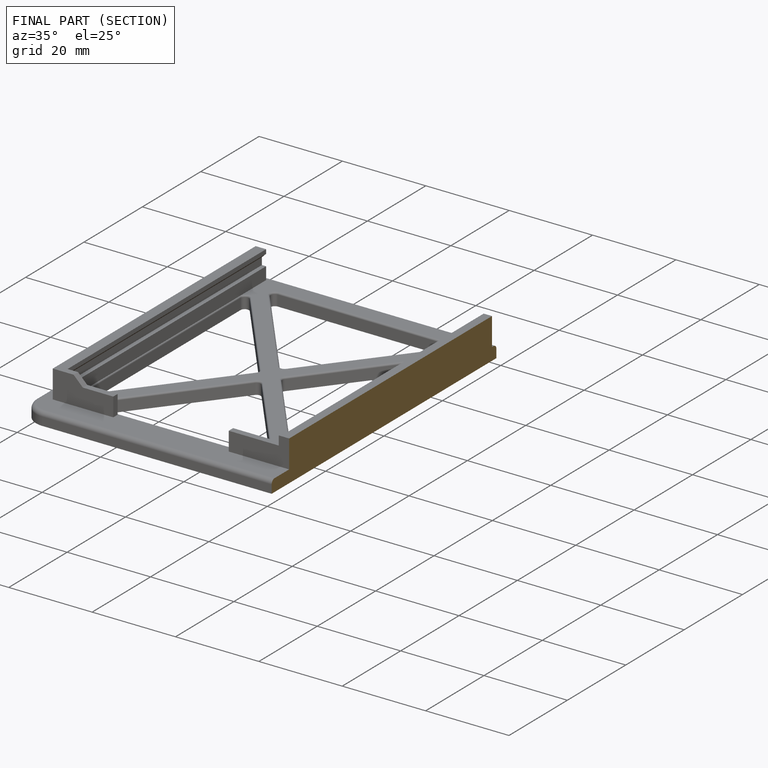
[diagram: finished part — half-section view (interior)]
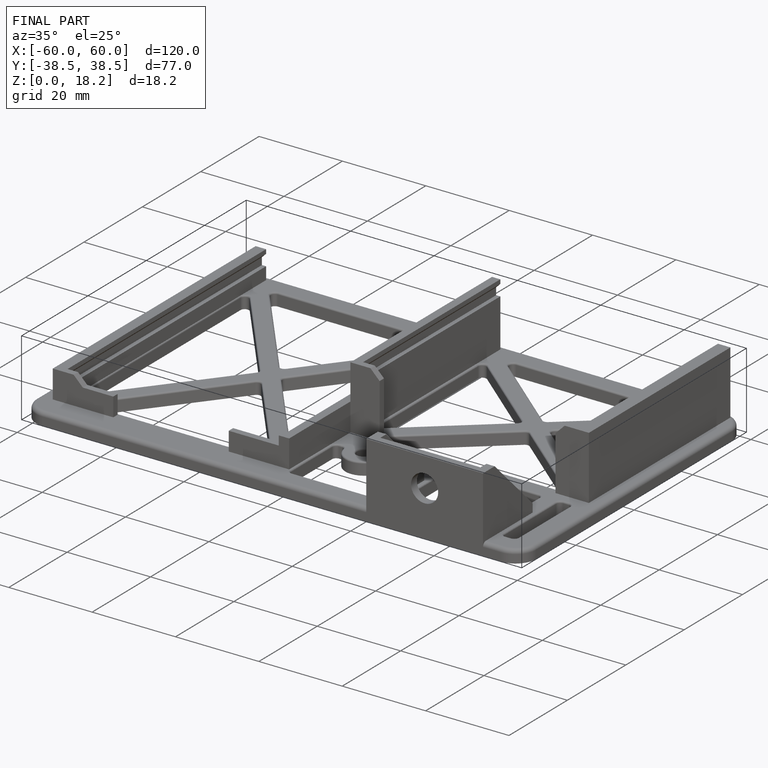
[diagram: finished part — iso view with bounding-box wireframe]
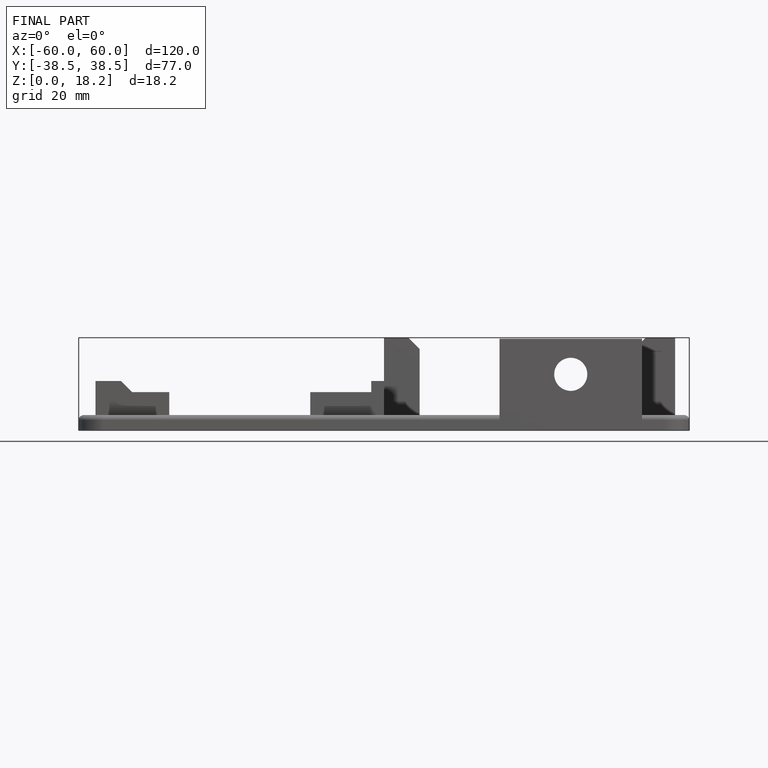
[diagram: finished part — front view with bounding-box wireframe]
